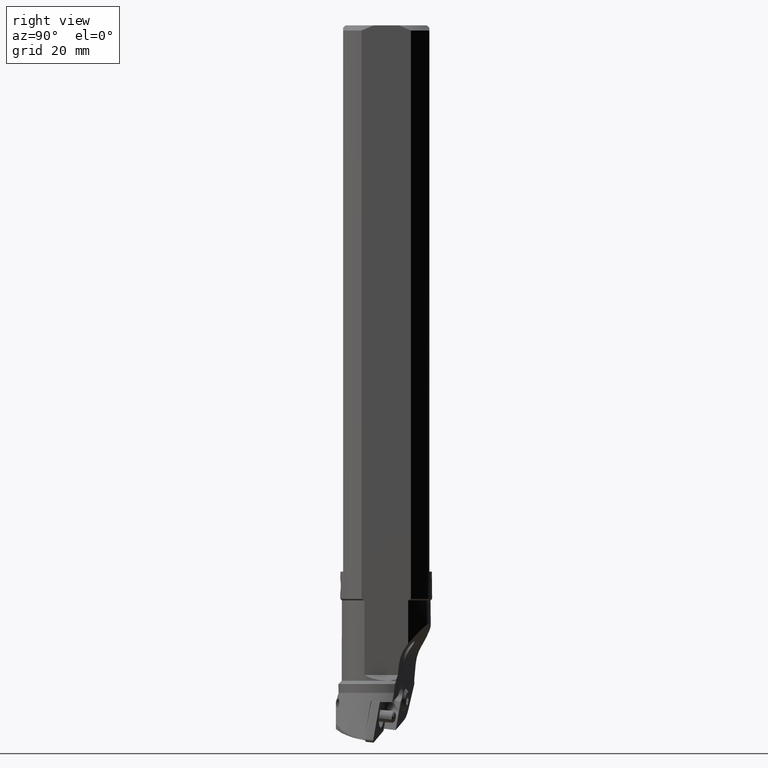
[diagram: clean part render]
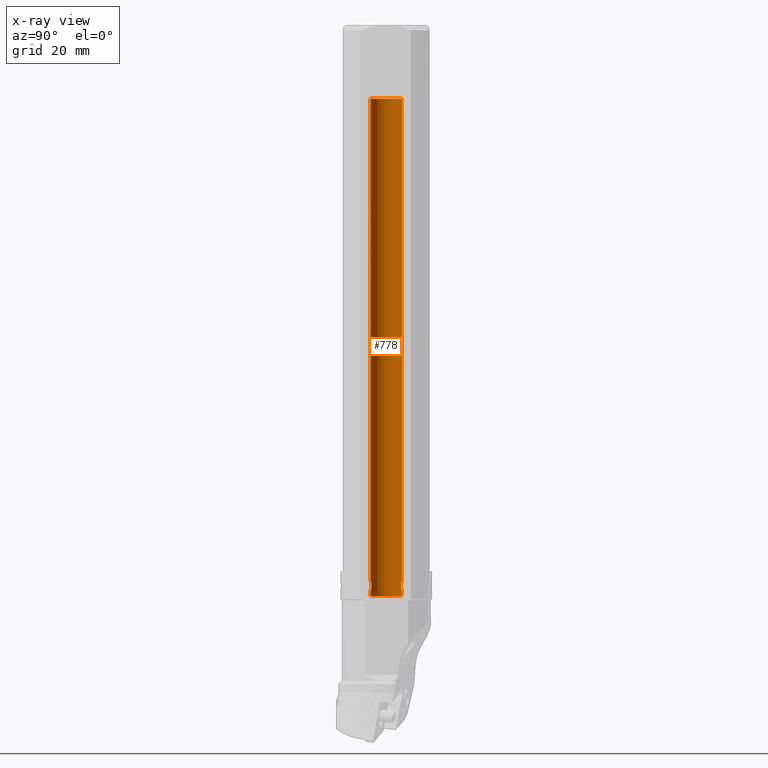
[diagram: x-ray — body ghosted, one internal face saturated and labeled with its STEP entity id]
A machine part, right view, then the same camera in x-ray: the body is ghosted and one INTERNAL B-rep face — a face not visible from any outside direction — is saturated and labeled: STEP entity #778.
In plain terms, the highlighted cylindrical surface (edge-blend (fillet) strip) has radius 5.5 mm, axis along (0, 0, -1).
Its self-contained STEP definition (entity closure, byte-faithful):
#219=CYLINDRICAL_SURFACE('',#3980,5.5);
#330=LINE('',#6216,#559);
#331=LINE('',#6221,#560);
#332=LINE('',#6257,#561);
#333=LINE('',#6258,#562);
#559=VECTOR('',#4641,1.);
#560=VECTOR('',#4644,1.);
#561=VECTOR('',#4645,1.);
#562=VECTOR('',#4646,1.);
#778=ADVANCED_FACE('',(#1021),#219,.F.);
#1021=FACE_OUTER_BOUND('',#1221,.T.);
#1221=EDGE_LOOP('',(#1986,#1987,#1988,#1989,#1990,#1991,#1992,#1993,#1994,
#1995));
#1417=CIRCLE('',#3977,5.500000000001);
#1418=CIRCLE('',#3979,5.499999999991);
#1986=ORIENTED_EDGE('',*,*,#3230,.F.);
#1987=ORIENTED_EDGE('',*,*,#3231,.T.);
#1988=ORIENTED_EDGE('',*,*,#3232,.F.);
#1989=ORIENTED_EDGE('',*,*,#3233,.F.);
#1990=ORIENTED_EDGE('',*,*,#3234,.F.);
#1991=ORIENTED_EDGE('',*,*,#3235,.F.);
#1992=ORIENTED_EDGE('',*,*,#3229,.T.);
#1993=ORIENTED_EDGE('',*,*,#3236,.F.);
#1994=ORIENTED_EDGE('',*,*,#3237,.F.);
#1995=ORIENTED_EDGE('',*,*,#3238,.F.);
#2806=VERTEX_POINT('',#6209);
#2807=VERTEX_POINT('',#6210);
#2808=VERTEX_POINT('',#6217);
#2809=VERTEX_POINT('',#6218);
#2810=VERTEX_POINT('',#6220);
#2811=VERTEX_POINT('',#6222);
#2812=VERTEX_POINT('',#6239);
#2813=VERTEX_POINT('',#6256);
#2814=VERTEX_POINT('',#6259);
#2815=VERTEX_POINT('',#6276);
#3229=EDGE_CURVE('',#2807,#2806,#1417,.T.);
#3230=EDGE_CURVE('',#2808,#2809,#330,.T.);
#3231=EDGE_CURVE('',#2808,#2810,#1418,.T.);
#3232=EDGE_CURVE('',#2811,#2810,#331,.T.);
#3233=EDGE_CURVE('',#2812,#2811,#3621,.T.);
#3234=EDGE_CURVE('',#2813,#2812,#3622,.T.);
#3235=EDGE_CURVE('',#2807,#2813,#332,.T.);
#3236=EDGE_CURVE('',#2814,#2806,#333,.T.);
#3237=EDGE_CURVE('',#2815,#2814,#3623,.T.);
#3238=EDGE_CURVE('',#2809,#2815,#3624,.T.);
#3621=B_SPLINE_CURVE_WITH_KNOTS('',3,(#6223,#6224,#6225,#6226,#6227,#6228,
#6229,#6230,#6231,#6232,#6233,#6234,#6235,#6236,#6237,#6238),
 .UNSPECIFIED.,.F.,.F.,(4,3,3,3,3,4),(0.,0.205093936303785,0.409590719162159,
0.622920009603276,0.843275505615875,1.),.UNSPECIFIED.);
#3622=B_SPLINE_CURVE_WITH_KNOTS('',3,(#6240,#6241,#6242,#6243,#6244,#6245,
#6246,#6247,#6248,#6249,#6250,#6251,#6252,#6253,#6254,#6255),
 .UNSPECIFIED.,.F.,.F.,(4,3,3,3,3,4),(0.,0.205590854678407,0.410679574767417,
0.623343935141532,0.843801528386137,1.),.UNSPECIFIED.);
#3623=B_SPLINE_CURVE_WITH_KNOTS('',3,(#6260,#6261,#6262,#6263,#6264,#6265,
#6266,#6267,#6268,#6269,#6270,#6271,#6272,#6273,#6274,#6275),
 .UNSPECIFIED.,.F.,.F.,(4,3,3,3,3,4),(0.,0.205093936303785,0.409590719162159,
0.622920009603276,0.843275505615875,1.),.UNSPECIFIED.);
#3624=B_SPLINE_CURVE_WITH_KNOTS('',3,(#6277,#6278,#6279,#6280,#6281,#6282,
#6283,#6284,#6285,#6286,#6287,#6288,#6289,#6290,#6291,#6292),
 .UNSPECIFIED.,.F.,.F.,(4,3,3,3,3,4),(0.,0.205590854678404,0.410679574767415,
0.623343935141531,0.843801528386136,1.),.UNSPECIFIED.);
#3977=AXIS2_PLACEMENT_3D('',#6214,#4637,#4638);
#3979=AXIS2_PLACEMENT_3D('',#6219,#4642,#4643);
#3980=AXIS2_PLACEMENT_3D('',#6293,#4647,#4648);
#4637=DIRECTION('',(0.,0.,1.));
#4638=DIRECTION('',(0.,1.,0.));
#4641=DIRECTION('',(0.,-1.552595658129E-12,1.));
#4642=DIRECTION('',(0.,0.,-1.));
#4643=DIRECTION('',(0.,-1.,0.));
#4644=DIRECTION('',(0.,-1.552012633098E-12,-1.));
#4645=DIRECTION('',(0.,0.,-1.));
#4646=DIRECTION('',(0.,0.,1.));
#4647=DIRECTION('',(0.,0.,-1.));
#4648=DIRECTION('',(0.,1.,0.));
#6209=CARTESIAN_POINT('',(0.,-5.500000000001,-25.5459553514));
#6210=CARTESIAN_POINT('',(0.,5.500000000001,-25.5459553514));
#6214=CARTESIAN_POINT('',(0.,0.,-25.5459553514));
#6216=CARTESIAN_POINT('',(0.,-5.499999999998,-198.5));
#6217=CARTESIAN_POINT('',(0.,-5.499999999998,-198.5));
#6218=CARTESIAN_POINT('',(0.,-5.50000000000018,-196.9766032809));
#6219=CARTESIAN_POINT('',(0.,0.,-198.5));
#6220=CARTESIAN_POINT('',(0.,5.499999999998,-198.5));
#6221=CARTESIAN_POINT('',(0.,5.5,-196.9766032809));
#6222=CARTESIAN_POINT('',(0.,5.5,-196.9766032809));
#6223=CARTESIAN_POINT('',(-2.,5.1234753829798,-194.9766032809));
#6224=CARTESIAN_POINT('',(-2.,5.1234753829798,-195.192062500445));
#6225=CARTESIAN_POINT('',(-1.96406768959803,5.13786977369954,-195.410463661836));
#6226=CARTESIAN_POINT('',(-1.89593733659554,5.1628888827577,-195.613330550383));
#6227=CARTESIAN_POINT('',(-1.82792062570291,5.18786625969184,-195.815859054932));
#6228=CARTESIAN_POINT('',(-1.72628234679179,5.22375234118725,-196.008458841221));
#6229=CARTESIAN_POINT('',(-1.59920770872072,5.26236968526235,-196.177658943377));
#6230=CARTESIAN_POINT('',(-1.4667205942325,5.30263185372785,-196.35406576732));
#6231=CARTESIAN_POINT('',(-1.3030158377918,5.34669321292777,-196.509898009602));
#6232=CARTESIAN_POINT('',(-1.11990838284418,5.38477531695013,-196.633650417838));
#6233=CARTESIAN_POINT('',(-0.931106854277498,5.42404165622895,-196.761251141935));
#6234=CARTESIAN_POINT('',(-0.715941651309545,5.45780881996585,-196.858223366452));
#6235=CARTESIAN_POINT('',(-0.492678688794164,5.47788898295758,-196.914970560238));
#6236=CARTESIAN_POINT('',(-0.332720313729402,5.49227556193604,-196.9556275004));
#6237=CARTESIAN_POINT('',(-0.165670281557741,5.5,-196.9766032809));
#6238=CARTESIAN_POINT('',(0.,5.5,-196.9766032809));
#6239=CARTESIAN_POINT('',(-2.,5.1234753829798,-194.9766032809));
#6240=CARTESIAN_POINT('',(0.,5.5,-192.9766032809));
#6241=CARTESIAN_POINT('',(-0.215991685348138,5.5,-192.9766032809));
#6242=CARTESIAN_POINT('',(-0.434942561490043,5.4866001989784,-193.012701014314));
#6243=CARTESIAN_POINT('',(-0.638391600772811,5.4628249252619,-193.081225702669));
#6244=CARTESIAN_POINT('',(-0.841558189889187,5.43908265897587,-193.14965525757));
#6245=CARTESIAN_POINT('',(-1.0348030736877,5.40456857421742,-193.251999380535));
#6246=CARTESIAN_POINT('',(-1.20430802073891,5.3665298090278,-193.379843376849));
#6247=CARTESIAN_POINT('',(-1.38001379549668,5.32709951023863,-193.512364160528));
#6248=CARTESIAN_POINT('',(-1.53504135908081,5.28302166770716,-193.675787418123));
#6249=CARTESIAN_POINT('',(-1.65814608132901,5.24409683100658,-193.858322648423));
#6250=CARTESIAN_POINT('',(-1.78552814273937,5.20381953011649,-194.047200162551));
#6251=CARTESIAN_POINT('',(-1.88224488709543,5.16824982513067,-194.262303948762));
#6252=CARTESIAN_POINT('',(-1.93879800345557,5.14694689129359,-194.485622322209));
#6253=CARTESIAN_POINT('',(-1.97915931740801,5.13174323045143,-194.645002097581));
#6254=CARTESIAN_POINT('',(-2.,5.1234753829798,-194.811490895645));
#6255=CARTESIAN_POINT('',(-2.,5.1234753829798,-194.9766032809));
#6256=CARTESIAN_POINT('',(0.,5.5,-192.9766032809));
#6257=CARTESIAN_POINT('',(0.,5.5,-25.5459553514));
#6258=CARTESIAN_POINT('',(0.,-5.5,-192.9766032809));
#6259=CARTESIAN_POINT('',(0.,-5.5,-192.9766032809));
#6260=CARTESIAN_POINT('',(-2.,-5.1234753829798,-194.9766032809));
#6261=CARTESIAN_POINT('',(-2.,-5.1234753829798,-194.761144061355));
#6262=CARTESIAN_POINT('',(-1.96406768959803,-5.13786977369954,-194.542742899964));
#6263=CARTESIAN_POINT('',(-1.89593733659554,-5.1628888827577,-194.339876011417));
#6264=CARTESIAN_POINT('',(-1.82792062570291,-5.18786625969184,-194.137347506868));
#6265=CARTESIAN_POINT('',(-1.72628234679179,-5.22375234118725,-193.944747720579));
#6266=CARTESIAN_POINT('',(-1.59920770872072,-5.26236968526235,-193.775547618423));
#6267=CARTESIAN_POINT('',(-1.4667205942325,-5.30263185372785,-193.59914079448));
#6268=CARTESIAN_POINT('',(-1.3030158377918,-5.34669321292777,-193.443308552198));
#6269=CARTESIAN_POINT('',(-1.11990838284418,-5.38477531695013,-193.319556143962));
#6270=CARTESIAN_POINT('',(-0.931106854277498,-5.42404165622895,-193.191955419865));
#6271=CARTESIAN_POINT('',(-0.715941651309545,-5.45780881996585,-193.094983195348));
#6272=CARTESIAN_POINT('',(-0.492678688794164,-5.47788898295758,-193.038236001562));
#6273=CARTESIAN_POINT('',(-0.332720313729402,-5.49227556193604,-192.9975790614));
#6274=CARTESIAN_POINT('',(-0.165670281557741,-5.5,-192.9766032809));
#6275=CARTESIAN_POINT('',(0.,-5.5,-192.9766032809));
#6276=CARTESIAN_POINT('',(-2.,-5.1234753829798,-194.9766032809));
#6277=CARTESIAN_POINT('',(0.,-5.50000000000018,-196.9766032809));
#6278=CARTESIAN_POINT('',(-0.215991685348142,-5.50000000000018,-196.9766032809));
#6279=CARTESIAN_POINT('',(-0.43494256149004,-5.4866001989784,-196.940505547487));
#6280=CARTESIAN_POINT('',(-0.638391600772811,-5.4628249252619,-196.871980859132));
#6281=CARTESIAN_POINT('',(-0.841558189889187,-5.43908265897587,-196.80355130423));
#6282=CARTESIAN_POINT('',(-1.0348030736877,-5.40456857421742,-196.701207181265));
#6283=CARTESIAN_POINT('',(-1.20430802073891,-5.3665298090278,-196.573363184951));
#6284=CARTESIAN_POINT('',(-1.38001379549668,-5.32709951023863,-196.440842401272));
#6285=CARTESIAN_POINT('',(-1.53504135908081,-5.28302166770716,-196.277419143677));
#6286=CARTESIAN_POINT('',(-1.65814608132901,-5.24409683100658,-196.094883913377));
#6287=CARTESIAN_POINT('',(-1.78552814273937,-5.20381953011649,-195.90600639925));
#6288=CARTESIAN_POINT('',(-1.88224488709543,-5.16824982513067,-195.690902613038));
#6289=CARTESIAN_POINT('',(-1.93879800345557,-5.14694689129359,-195.467584239591));
#6290=CARTESIAN_POINT('',(-1.97915931740801,-5.13174323045143,-195.308204464219));
#6291=CARTESIAN_POINT('',(-2.,-5.1234753829798,-195.141715666155));
#6292=CARTESIAN_POINT('',(-2.,-5.1234753829798,-194.9766032809));
#6293=CARTESIAN_POINT('',(0.,0.,-22.08687445843));